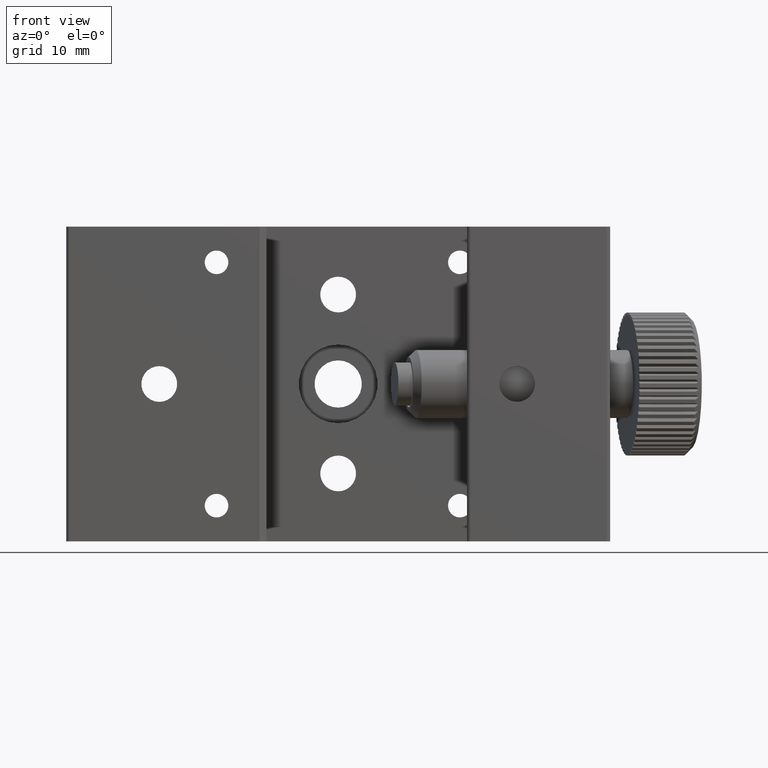
[diagram: clean part render]
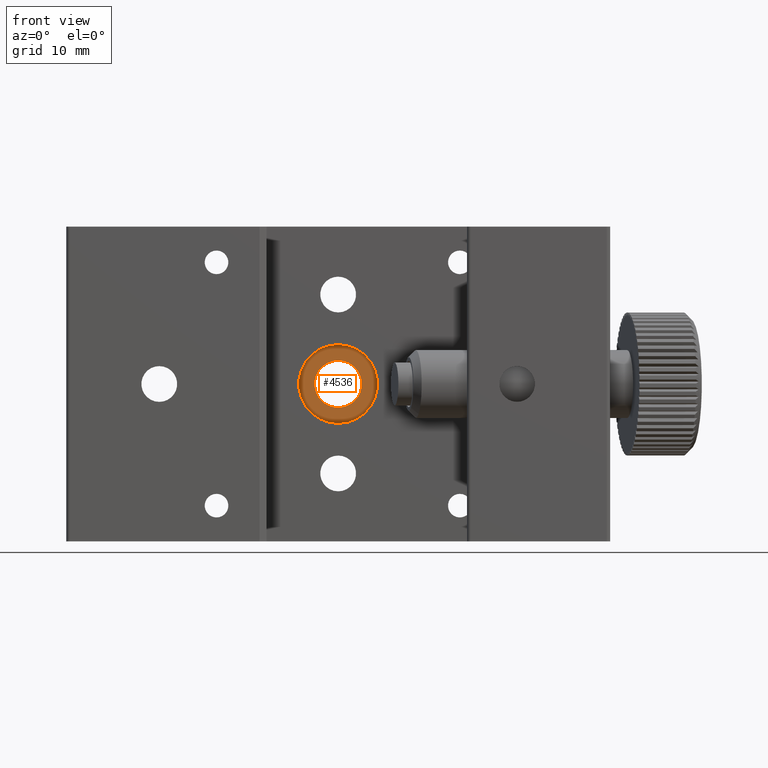
[diagram: same view with one face highlighted and labeled with its STEP entity id]
A machine part, front view. The second image highlights one B-rep face of the part: STEP entity #4536.
In plain terms, the highlighted planar face has unit normal (0, 1, 0).
Its self-contained STEP definition (entity closure, byte-faithful):
#83 = FACE_BOUND ( 'NONE', #911, .T. ) ;
#93 = FACE_OUTER_BOUND ( 'NONE', #814, .T. ) ;
#484 = CARTESIAN_POINT ( 'NONE',  ( -22.72326483554944300, 8.057949595748372200, 0.0000000000000000000 ) ) ;
#485 = DIRECTION ( 'NONE',  ( -0.0000000000000000000, -1.000000000000000000, -0.0000000000000000000 ) ) ;
#486 = DIRECTION ( 'NONE',  ( 0.0000000000000000000, 0.0000000000000000000, -1.000000000000000000 ) ) ;
#487 = CARTESIAN_POINT ( 'NONE',  ( -22.72326483554944300, 8.057949595748372200, 0.0000000000000000000 ) ) ;
#814 = EDGE_LOOP ( 'NONE', ( #1064 ) ) ;
#911 = EDGE_LOOP ( 'NONE', ( #1063 ) ) ;
#1063 = ORIENTED_EDGE ( 'NONE', *, *, #1380, .F. ) ;
#1064 = ORIENTED_EDGE ( 'NONE', *, *, #1381, .T. ) ;
#1380 = EDGE_CURVE ( 'NONE', #4291, #4291, #2557, .T. ) ;
#1381 = EDGE_CURVE ( 'NONE', #4292, #4292, #2558, .T. ) ;
#2557 = CIRCLE ( 'NONE', #3350, 3.300000000000013100 ) ;
#2558 = CIRCLE ( 'NONE', #3351, 5.499999999999994700 ) ;
#2611 = CARTESIAN_POINT ( 'NONE',  ( -19.42326483554943200, 8.057949595748372200, 0.0000000000000000000 ) ) ;
#2613 = PLANE ( 'NONE',  #7128 ) ;
#2615 = DIRECTION ( 'NONE',  ( 0.0000000000000000000, 1.000000000000000000, 0.0000000000000000000 ) ) ;
#2616 = DIRECTION ( 'NONE',  ( 0.0000000000000000000, -0.0000000000000000000, 1.000000000000000000 ) ) ;
#3206 = DIRECTION ( 'NONE',  ( -0.0000000000000000000, -1.000000000000000000, -0.0000000000000000000 ) ) ;
#3350 = AXIS2_PLACEMENT_3D ( 'NONE', #484, #485, #486 ) ;
#3351 = AXIS2_PLACEMENT_3D ( 'NONE', #487, #3206, #3789 ) ;
#3789 = DIRECTION ( 'NONE',  ( 0.0000000000000000000, 0.0000000000000000000, -1.000000000000000000 ) ) ;
#4291 = VERTEX_POINT ( 'NONE', #5337 ) ;
#4292 = VERTEX_POINT ( 'NONE', #5338 ) ;
#4536 = ADVANCED_FACE ( 'NONE', ( #83, #93 ), #2613, .F. ) ;
#5337 = CARTESIAN_POINT ( 'NONE',  ( -22.72326483554944300, 8.057949595748372200, -3.300000000000013100 ) ) ;
#5338 = CARTESIAN_POINT ( 'NONE',  ( -22.72326483554944300, 8.057949595748372200, -5.499999999999994700 ) ) ;
#7128 = AXIS2_PLACEMENT_3D ( 'NONE', #2611, #2615, #2616 ) ;